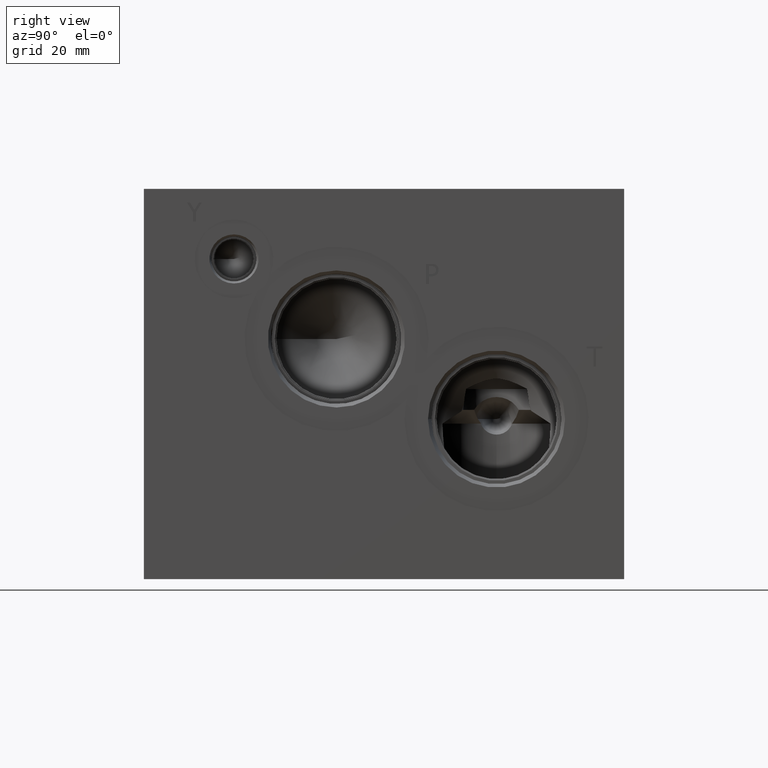
[diagram: clean part render]
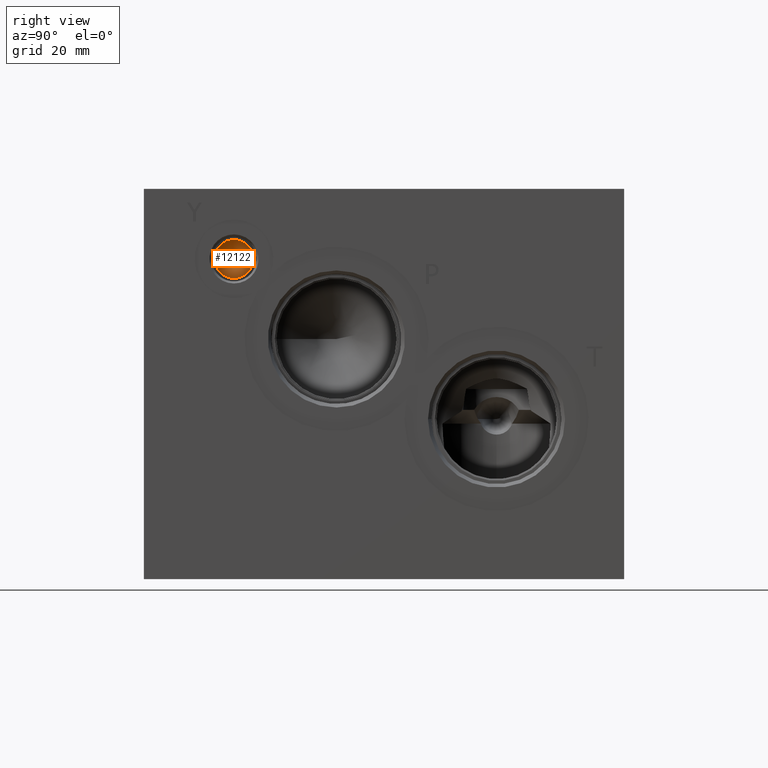
[diagram: same view with one face highlighted and labeled with its STEP entity id]
A machine part, right view. The second image highlights one B-rep face of the part: STEP entity #12122.
In plain terms, the highlighted conical surface has half-angle 60 deg.
Its self-contained STEP definition (entity closure, byte-faithful):
#115=CONICAL_SURFACE('',#12713,3.0734,1.0471975511966);
#255=CIRCLE('',#12714,6.1468);
#256=CIRCLE('',#12715,6.1468);
#1385=FACE_OUTER_BOUND('',#2080,.T.);
#2080=EDGE_LOOP('',(#10461,#10462,#10463,#10464));
#3215=LINE('',#20748,#4297);
#4297=VECTOR('',#14940,3.0734);
#5700=VERTEX_POINT('',#20744);
#5701=VERTEX_POINT('',#20745);
#5702=VERTEX_POINT('',#20747);
#7335=EDGE_CURVE('',#5700,#5701,#255,.T.);
#7336=EDGE_CURVE('',#5701,#5702,#3215,.T.);
#7337=EDGE_CURVE('',#5701,#5700,#256,.T.);
#10461=ORIENTED_EDGE('',*,*,#7335,.T.);
#10462=ORIENTED_EDGE('',*,*,#7336,.T.);
#10463=ORIENTED_EDGE('',*,*,#7336,.F.);
#10464=ORIENTED_EDGE('',*,*,#7337,.T.);
#12122=ADVANCED_FACE('',(#1385),#115,.F.);
#12713=AXIS2_PLACEMENT_3D('',#20743,#14936,#14937);
#12714=AXIS2_PLACEMENT_3D('',#20746,#14938,#14939);
#12715=AXIS2_PLACEMENT_3D('',#20749,#14941,#14942);
#14936=DIRECTION('center_axis',(1.,0.,0.));
#14937=DIRECTION('ref_axis',(0.,1.,0.));
#14938=DIRECTION('center_axis',(1.,0.,0.));
#14939=DIRECTION('ref_axis',(0.,1.,0.));
#14940=DIRECTION('',(-0.5,0.866025403784438,1.06057523872491E-16));
#14941=DIRECTION('center_axis',(1.,0.,0.));
#14942=DIRECTION('ref_axis',(0.,1.,0.));
#20743=CARTESIAN_POINT('Origin',(102.085321682673,28.575,101.6));
#20744=CARTESIAN_POINT('',(103.85975,34.7218,101.6));
#20745=CARTESIAN_POINT('',(103.85975,22.4282,101.6));
#20746=CARTESIAN_POINT('Origin',(103.85975,28.575,101.6));
#20747=CARTESIAN_POINT('',(100.310893365345,28.575,101.6));
#20748=CARTESIAN_POINT('',(102.085321682673,25.5016,101.6));
#20749=CARTESIAN_POINT('Origin',(103.85975,28.575,101.6));